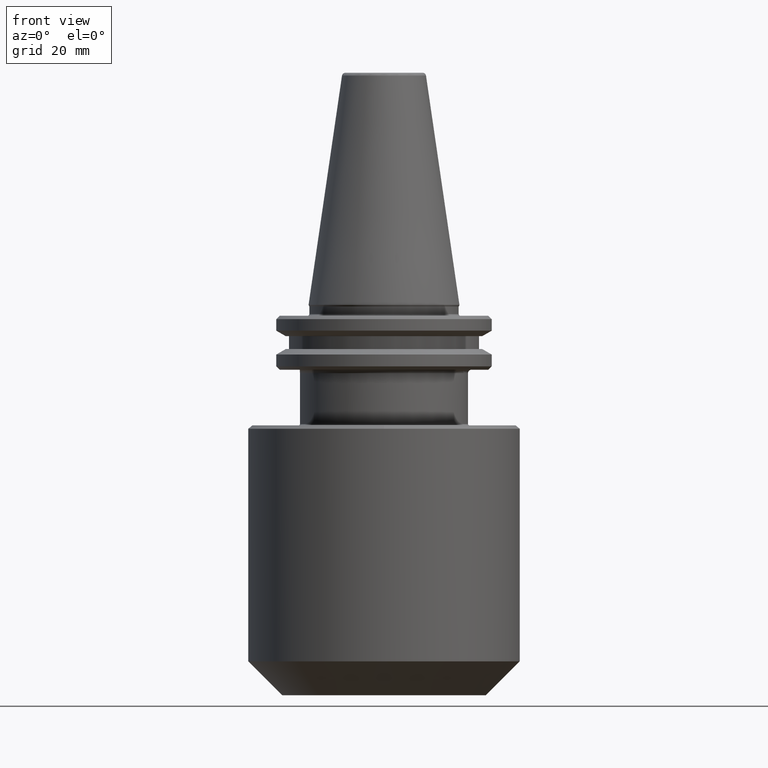
[diagram: clean part render]
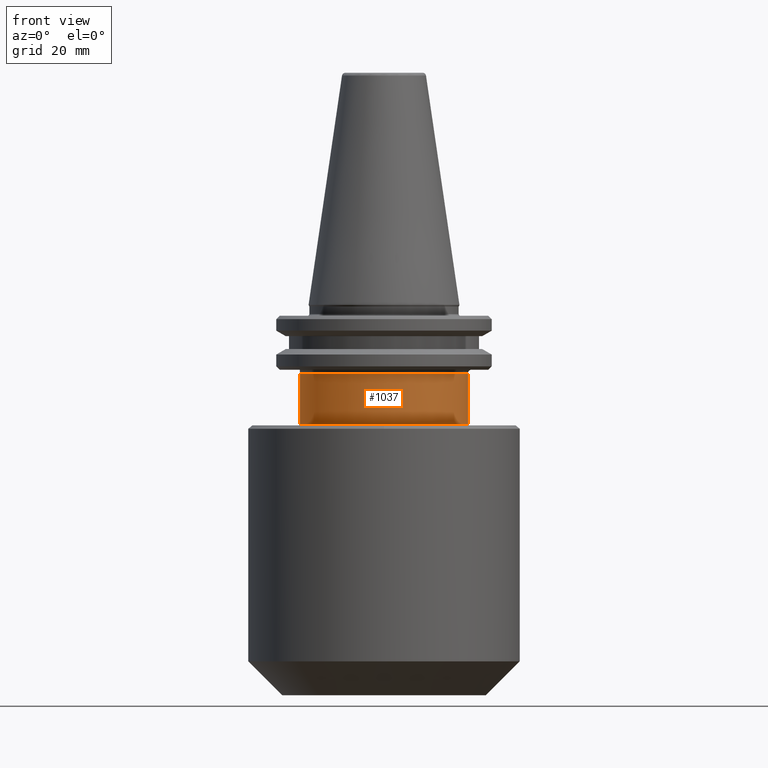
[diagram: same view with one face highlighted and labeled with its STEP entity id]
A machine part, front view. The second image highlights one B-rep face of the part: STEP entity #1037.
In plain terms, the highlighted cylindrical surface (partial cylindrical patch) has radius 24.75 mm, axis along (0, 0, 1).
Its self-contained STEP definition (entity closure, byte-faithful):
#9 = CARTESIAN_POINT ( 'NONE',  ( -24.75000000000000000, 3.031000827889699300E-015, -35.09999999999999400 ) ) ;
#254 = CIRCLE ( 'NONE', #1935, 24.75000000000000000 ) ;
#270 = AXIS2_PLACEMENT_3D ( 'NONE', #1303, #1528, #1863 ) ;
#285 = ORIENTED_EDGE ( 'NONE', *, *, #1525, .T. ) ;
#331 = DIRECTION ( 'NONE',  ( 0.0000000000000000000, 0.0000000000000000000, -1.000000000000000000 ) ) ;
#332 = ORIENTED_EDGE ( 'NONE', *, *, #1908, .T. ) ;
#351 = CIRCLE ( 'NONE', #1291, 24.75000000000000000 ) ;
#381 = CARTESIAN_POINT ( 'NONE',  ( 0.0000000000000000000, 0.0000000000000000000, -20.10000000000000900 ) ) ;
#407 = CARTESIAN_POINT ( 'NONE',  ( 24.75000000000000000, 0.0000000000000000000, -20.10000000000000900 ) ) ;
#408 = EDGE_CURVE ( 'NONE', #1912, #721, #501, .T. ) ;
#419 = CARTESIAN_POINT ( 'NONE',  ( -24.75000000000000000, 3.031000827889699300E-015, -20.10000000000000900 ) ) ;
#460 = ORIENTED_EDGE ( 'NONE', *, *, #1491, .T. ) ;
#476 = EDGE_CURVE ( 'NONE', #1950, #721, #1568, .T. ) ;
#501 = CIRCLE ( 'NONE', #617, 24.75000000000000000 ) ;
#537 = CYLINDRICAL_SURFACE ( 'NONE', #270, 24.75000000000000000 ) ;
#587 = DIRECTION ( 'NONE',  ( 0.0000000000000000000, 0.0000000000000000000, 1.000000000000000000 ) ) ;
#589 = CARTESIAN_POINT ( 'NONE',  ( -24.75000000000000000, 3.031000827889699300E-015, 82.95681253582424100 ) ) ;
#617 = AXIS2_PLACEMENT_3D ( 'NONE', #658, #655, #652 ) ;
#652 = DIRECTION ( 'NONE',  ( 1.000000000000000000, 0.0000000000000000000, 0.0000000000000000000 ) ) ;
#655 = DIRECTION ( 'NONE',  ( -0.0000000000000000000, -0.0000000000000000000, -1.000000000000000000 ) ) ;
#658 = CARTESIAN_POINT ( 'NONE',  ( 0.0000000000000000000, 0.0000000000000000000, -20.10000000000000900 ) ) ;
#698 = VECTOR ( 'NONE', #587, 1000.000000000000000 ) ;
#721 = VERTEX_POINT ( 'NONE', #419 ) ;
#726 = VERTEX_POINT ( 'NONE', #407 ) ;
#733 = FACE_OUTER_BOUND ( 'NONE', #1489, .T. ) ;
#781 = LINE ( 'NONE', #1766, #1552 ) ;
#1037 = ADVANCED_FACE ( 'NONE', ( #733 ), #537, .T. ) ;
#1228 = DIRECTION ( 'NONE',  ( -1.000000000000000000, 0.0000000000000000000, 0.0000000000000000000 ) ) ;
#1291 = AXIS2_PLACEMENT_3D ( 'NONE', #381, #331, #1228 ) ;
#1303 = CARTESIAN_POINT ( 'NONE',  ( 0.0000000000000000000, 0.0000000000000000000, 82.95681253582424100 ) ) ;
#1377 = VERTEX_POINT ( 'NONE', #1898 ) ;
#1412 = ORIENTED_EDGE ( 'NONE', *, *, #408, .T. ) ;
#1489 = EDGE_LOOP ( 'NONE', ( #1848, #285, #332, #460, #1412 ) ) ;
#1491 = EDGE_CURVE ( 'NONE', #726, #1912, #351, .T. ) ;
#1525 = EDGE_CURVE ( 'NONE', #1950, #1377, #254, .T. ) ;
#1528 = DIRECTION ( 'NONE',  ( 0.0000000000000000000, 0.0000000000000000000, 1.000000000000000000 ) ) ;
#1552 = VECTOR ( 'NONE', #1849, 1000.000000000000000 ) ;
#1568 = LINE ( 'NONE', #589, #698 ) ;
#1766 = CARTESIAN_POINT ( 'NONE',  ( 24.75000000000000000, 0.0000000000000000000, 82.95681253582424100 ) ) ;
#1807 = DIRECTION ( 'NONE',  ( 1.000000000000000000, 0.0000000000000000000, 0.0000000000000000000 ) ) ;
#1845 = DIRECTION ( 'NONE',  ( 0.0000000000000000000, 0.0000000000000000000, 1.000000000000000000 ) ) ;
#1848 = ORIENTED_EDGE ( 'NONE', *, *, #476, .F. ) ;
#1849 = DIRECTION ( 'NONE',  ( 0.0000000000000000000, 0.0000000000000000000, 1.000000000000000000 ) ) ;
#1850 = CARTESIAN_POINT ( 'NONE',  ( 0.0000000000000000000, 0.0000000000000000000, -35.09999999999999400 ) ) ;
#1863 = DIRECTION ( 'NONE',  ( 1.000000000000000000, 0.0000000000000000000, 0.0000000000000000000 ) ) ;
#1898 = CARTESIAN_POINT ( 'NONE',  ( 24.75000000000000000, 0.0000000000000000000, -35.09999999999999400 ) ) ;
#1908 = EDGE_CURVE ( 'NONE', #1377, #726, #781, .T. ) ;
#1912 = VERTEX_POINT ( 'NONE', #1914 ) ;
#1914 = CARTESIAN_POINT ( 'NONE',  ( 23.42562699267620700, -7.987646712267633100, -20.10000000000000900 ) ) ;
#1935 = AXIS2_PLACEMENT_3D ( 'NONE', #1850, #1845, #1807 ) ;
#1950 = VERTEX_POINT ( 'NONE', #9 ) ;